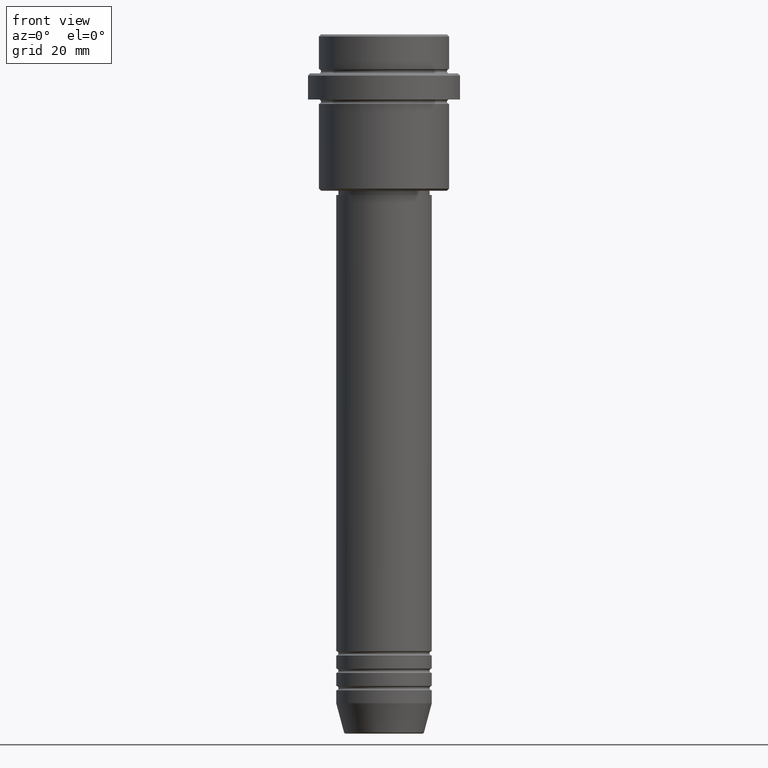
[diagram: clean part render]
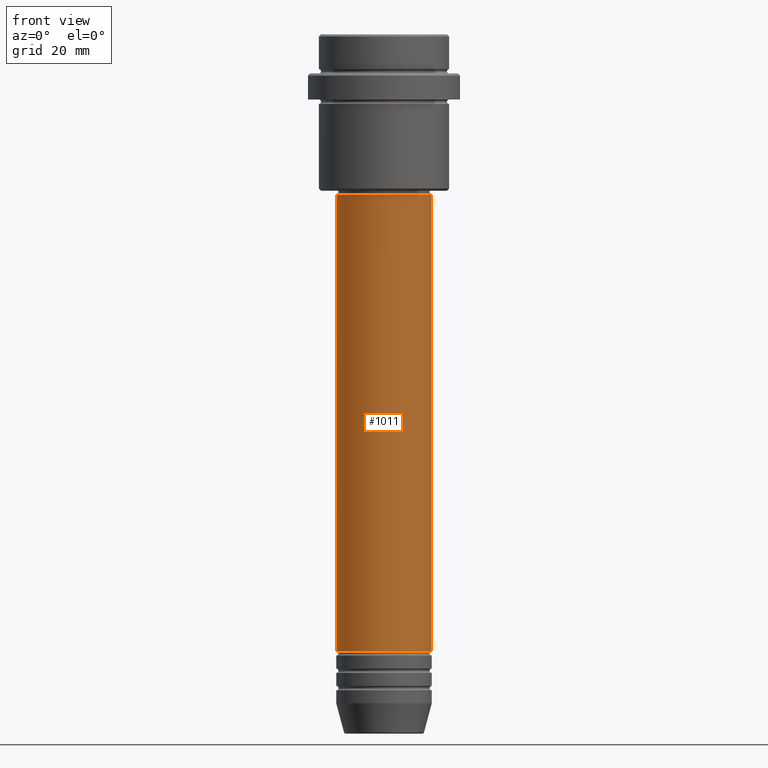
[diagram: same view with one face highlighted and labeled with its STEP entity id]
A machine part, front view. The second image highlights one B-rep face of the part: STEP entity #1011.
In plain terms, the highlighted cylindrical surface (partial cylindrical patch) has radius 11 mm, axis along (-0, -0, 1).
Its self-contained STEP definition (entity closure, byte-faithful):
#12 = EDGE_CURVE ( 'NONE', #1341, #396, #1101, .T. ) ;
#94 = EDGE_CURVE ( 'NONE', #396, #681, #1084, .T. ) ;
#143 = DIRECTION ( 'NONE',  ( 1.000000000000000000, 0.000000000000000000, 0.000000000000000000 ) ) ;
#180 = AXIS2_PLACEMENT_3D ( 'NONE', #775, #1313, #219 ) ;
#193 = DIRECTION ( 'NONE',  ( -0.000000000000000000, -0.000000000000000000, 1.000000000000000000 ) ) ;
#219 = DIRECTION ( 'NONE',  ( 1.000000000000000000, 0.000000000000000000, 0.000000000000000000 ) ) ;
#274 = CARTESIAN_POINT ( 'NONE',  ( 11.00000000000000000, 0.000000000000000000, 0.000000000000000000 ) ) ;
#308 = EDGE_LOOP ( 'NONE', ( #432, #490, #481, #1009 ) ) ;
#396 = VERTEX_POINT ( 'NONE', #1297 ) ;
#400 = DIRECTION ( 'NONE',  ( -0.000000000000000000, -0.000000000000000000, 1.000000000000000000 ) ) ;
#432 = ORIENTED_EDGE ( 'NONE', *, *, #12, .F. ) ;
#481 = ORIENTED_EDGE ( 'NONE', *, *, #867, .T. ) ;
#487 = CARTESIAN_POINT ( 'NONE',  ( 11.00000000000000000, 0.000000000000000000, -141.9999999999999147 ) ) ;
#490 = ORIENTED_EDGE ( 'NONE', *, *, #669, .T. ) ;
#523 = FACE_OUTER_BOUND ( 'NONE', #308, .T. ) ;
#533 = DIRECTION ( 'NONE',  ( 1.000000000000000000, 0.000000000000000000, 0.000000000000000000 ) ) ;
#669 = EDGE_CURVE ( 'NONE', #1341, #952, #1150, .T. ) ;
#681 = VERTEX_POINT ( 'NONE', #801 ) ;
#775 = CARTESIAN_POINT ( 'NONE',  ( 0.000000000000000000, 0.000000000000000000, -141.9999999999999147 ) ) ;
#786 = DIRECTION ( 'NONE',  ( -0.000000000000000000, -0.000000000000000000, 1.000000000000000000 ) ) ;
#801 = CARTESIAN_POINT ( 'NONE',  ( 10.99999999999999822, 0.000000000000000000, -36.99999999999999289 ) ) ;
#806 = CARTESIAN_POINT ( 'NONE',  ( 0.000000000000000000, 0.000000000000000000, -36.99999999999999289 ) ) ;
#867 = EDGE_CURVE ( 'NONE', #952, #681, #1065, .T. ) ;
#881 = AXIS2_PLACEMENT_3D ( 'NONE', #806, #786, #143 ) ;
#900 = VECTOR ( 'NONE', #193, 1000.000000000000000 ) ;
#930 = VECTOR ( 'NONE', #400, 1000.000000000000000 ) ;
#952 = VERTEX_POINT ( 'NONE', #487 ) ;
#1009 = ORIENTED_EDGE ( 'NONE', *, *, #94, .F. ) ;
#1011 = ADVANCED_FACE ( 'NONE', ( #523 ), #1199, .T. ) ;
#1065 = LINE ( 'NONE', #274, #930 ) ;
#1084 = CIRCLE ( 'NONE', #881, 10.99999999999999822 ) ;
#1089 = AXIS2_PLACEMENT_3D ( 'NONE', #1284, #1312, #533 ) ;
#1101 = LINE ( 'NONE', #1202, #900 ) ;
#1150 = CIRCLE ( 'NONE', #180, 11.00000000000000000 ) ;
#1199 = CYLINDRICAL_SURFACE ( 'NONE', #1089, 11.00000000000000000 ) ;
#1202 = CARTESIAN_POINT ( 'NONE',  ( -11.00000000000000000, 1.347111479062088405E-15, 0.000000000000000000 ) ) ;
#1276 = CARTESIAN_POINT ( 'NONE',  ( -11.00000000000000000, 1.347111479062088405E-15, -141.9999999999999147 ) ) ;
#1284 = CARTESIAN_POINT ( 'NONE',  ( 0.000000000000000000, 0.000000000000000000, 0.000000000000000000 ) ) ;
#1297 = CARTESIAN_POINT ( 'NONE',  ( -10.99999999999999822, 1.347111479062088207E-15, -36.99999999999999289 ) ) ;
#1312 = DIRECTION ( 'NONE',  ( -0.000000000000000000, -0.000000000000000000, 1.000000000000000000 ) ) ;
#1313 = DIRECTION ( 'NONE',  ( -0.000000000000000000, -0.000000000000000000, 1.000000000000000000 ) ) ;
#1341 = VERTEX_POINT ( 'NONE', #1276 ) ;